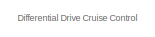
[diagram: root canvas - part 1/3, top center region]
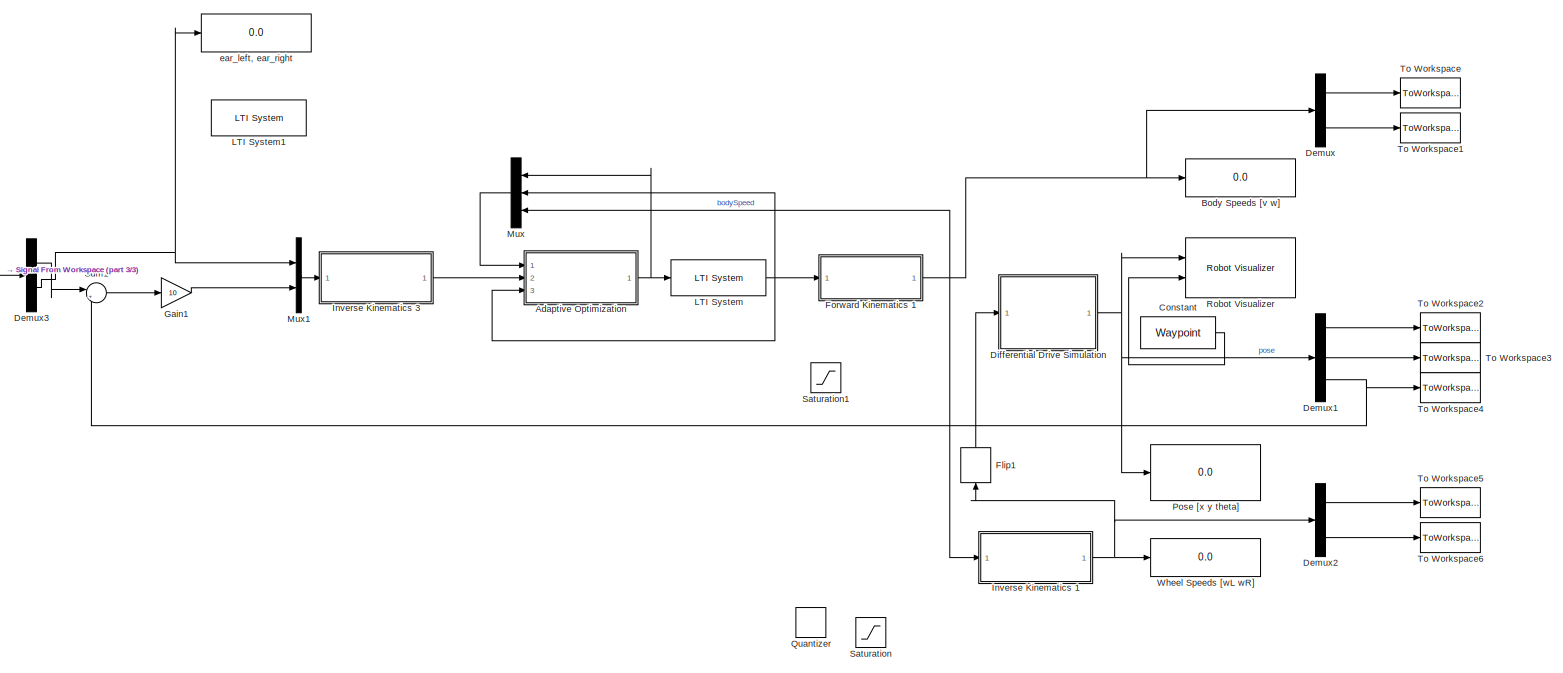
[diagram: root canvas - part 2/3, most of the canvas]
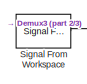
[diagram: root canvas - part 3/3, middle left region]
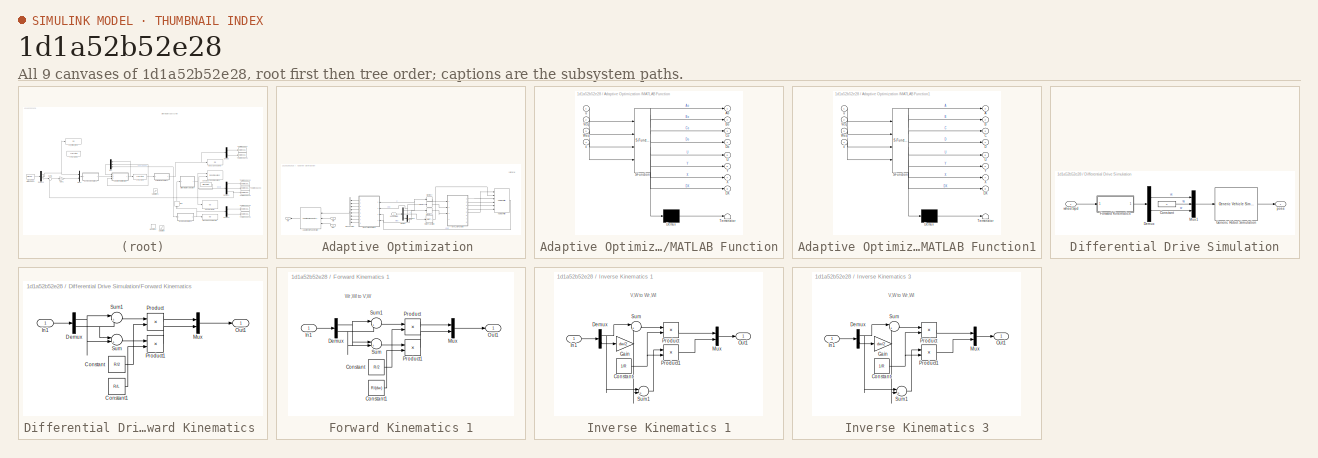
[diagram: thumbnail index - all 9 canvases of the model, root first then tree order]
MODEL slx_1d1a52b52e28
KIND model
CONFIG AbsTol = auto
CONFIG EnableMultiTasking = on
CONFIG FixedStep = 0.01
CONFIG MaxStep = auto
CONFIG MinStep = auto
CONFIG PreLoadFcn = sampleTime = 0.05;\n\n% Vehicle Parameters\nR = 0.1;\nL = 0.5;
CONFIG RelTol = 1e-3
CONFIG SampleTimeConstraint = Unconstrained
CONFIG Solver = VariableStepAuto
CONFIG SolverName = VariableStepAuto
CONFIG StartTime = 0.0
CONFIG StopTime = inf
BLOCK [SubSystem] Adaptive Optimization 
  Ports = [3, 1]
  RequestExecContextInheritance = off
BLOCK [Reference] Adaptive Optimization /Adaptive MPC Controller  REF=mpclib/Adaptive MPC Controller  (lib defined in mdl_ae329e0e0455)
  Ports = [3, 1]
  SCDEnableBlockLinearizationSpecification = on
  SourceBlock = mpclib/Adaptive MPC Controller
  SourceProductBaseCode = MP
  SourceProductName = Model Predictive Control Toolbox
  SourceType = Adaptive MPC
BLOCK [BusCreator] Adaptive Optimization /Bus Creator
  DisplayOption = bar
  InheritFromInputs = on
  Inputs = 8
  Ports = [8, 1]
BLOCK [Demux] Adaptive Optimization /Demux
  DisplayOption = bar
  Outputs = 3
  Ports = [1, 3]
BLOCK [Demux] Adaptive Optimization /Demux1
  DisplayOption = bar
  Outputs = 2
  Ports = [1, 2]
BLOCK [Reference] Adaptive Optimization /Kalman Filter  REF=ctrlSharedLib/Kalman Filter
  Ports = [6, 1]
  SourceBlock = ctrlSharedLib/Kalman Filter
  SourceProductBaseCode = CT
  SourceProductName = Control System Toolbox
  SourceType = ctrlKalmanFilter
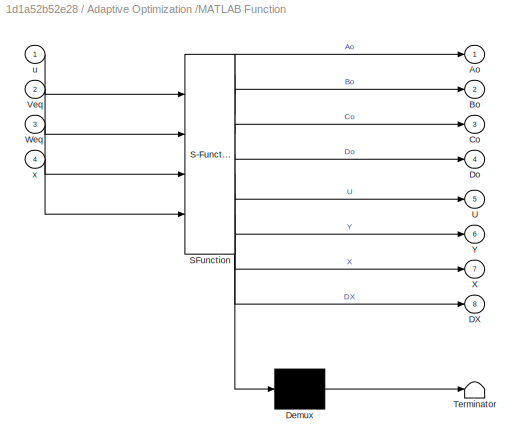
BLOCK [SubSystem] Adaptive Optimization /MATLAB Function
  ErrorFcn = Stateflow.Translate.translate
  PermitHierarchicalResolution = ExplicitOnly
  Ports = [4, 8]
  RequestExecContextInheritance = off
  SFBlockType = MATLAB Function
  SystemSampleTime = sampleTime
  TreatAsAtomicUnit = on
BLOCK [Demux] Adaptive Optimization /MATLAB Function/ Demux 
  Outputs = 1
  Ports = [1, 1]
BLOCK [S-Function] Adaptive Optimization /MATLAB Function/ SFunction 
  EnableBusSupport = on
  FunctionName = sf_sfun
  Parameters = I,Iw,L,R,d,dw,md,sampleTime
  PortCounts = [4 9]
  Ports = [4, 9]
  SFcnIsStateOwnerBlock = off
  SFunctionDeploymentMode = off
  Tag = Stateflow S-Function Cruise_MPC_Adaptive 3
BLOCK [Terminator] Adaptive Optimization /MATLAB Function/ Terminator 
BLOCK [Outport] Adaptive Optimization /MATLAB Function/Ao
  IconDisplay = Port number
BLOCK [Outport] Adaptive Optimization /MATLAB Function/Bo
  IconDisplay = Port number
  Port = 2
BLOCK [Outport] Adaptive Optimization /MATLAB Function/Co
  IconDisplay = Port number
  Port = 3
BLOCK [Outport] Adaptive Optimization /MATLAB Function/DX
  IconDisplay = Port number
  Port = 8
BLOCK [Outport] Adaptive Optimization /MATLAB Function/Do
  IconDisplay = Port number
  Port = 4
BLOCK [Outport] Adaptive Optimization /MATLAB Function/U
  IconDisplay = Port number
  Port = 5
BLOCK [Inport] Adaptive Optimization /MATLAB Function/Veq
  IconDisplay = Port number
  Port = 2
BLOCK [Inport] Adaptive Optimization /MATLAB Function/Weq
  IconDisplay = Port number
  Port = 3
BLOCK [Outport] Adaptive Optimization /MATLAB Function/X
  IconDisplay = Port number
  Port = 7
BLOCK [Outport] Adaptive Optimization /MATLAB Function/Y
  IconDisplay = Port number
  Port = 6
BLOCK [Inport] Adaptive Optimization /MATLAB Function/u
  IconDisplay = Port number
BLOCK [Inport] Adaptive Optimization /MATLAB Function/x
  IconDisplay = Port number
  Port = 4
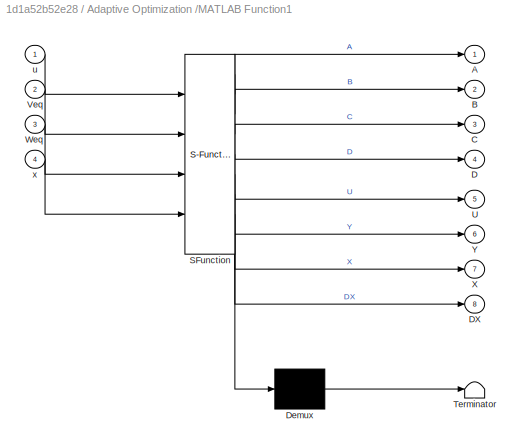
BLOCK [SubSystem] Adaptive Optimization /MATLAB Function1
  ErrorFcn = Stateflow.Translate.translate
  PermitHierarchicalResolution = ExplicitOnly
  Ports = [4, 8]
  RequestExecContextInheritance = off
  SFBlockType = MATLAB Function
  SystemSampleTime = sampleTime
  TreatAsAtomicUnit = on
BLOCK [Demux] Adaptive Optimization /MATLAB Function1/ Demux 
  Outputs = 1
  Ports = [1, 1]
BLOCK [S-Function] Adaptive Optimization /MATLAB Function1/ SFunction 
  EnableBusSupport = on
  FunctionName = sf_sfun
  Parameters = I,Iw,L,R,d,dw,md,sampleTime
  PortCounts = [4 9]
  Ports = [4, 9]
  SFcnIsStateOwnerBlock = off
  SFunctionDeploymentMode = off
  Tag = Stateflow S-Function Cruise_MPC_Adaptive 4
BLOCK [Terminator] Adaptive Optimization /MATLAB Function1/ Terminator 
BLOCK [Outport] Adaptive Optimization /MATLAB Function1/A
  IconDisplay = Port number
BLOCK [Outport] Adaptive Optimization /MATLAB Function1/B
  IconDisplay = Port number
  Port = 2
BLOCK [Outport] Adaptive Optimization /MATLAB Function1/C
  IconDisplay = Port number
  Port = 3
BLOCK [Outport] Adaptive Optimization /MATLAB Function1/D
  IconDisplay = Port number
  Port = 4
BLOCK [Outport] Adaptive Optimization /MATLAB Function1/DX
  IconDisplay = Port number
  Port = 8
BLOCK [Outport] Adaptive Optimization /MATLAB Function1/U
  IconDisplay = Port number
  Port = 5
BLOCK [Inport] Adaptive Optimization /MATLAB Function1/Veq
  IconDisplay = Port number
  Port = 2
BLOCK [Inport] Adaptive Optimization /MATLAB Function1/Weq
  IconDisplay = Port number
  Port = 3
BLOCK [Outport] Adaptive Optimization /MATLAB Function1/X
  IconDisplay = Port number
  Port = 7
BLOCK [Outport] Adaptive Optimization /MATLAB Function1/Y
  IconDisplay = Port number
  Port = 6
BLOCK [Inport] Adaptive Optimization /MATLAB Function1/u
  IconDisplay = Port number
BLOCK [Inport] Adaptive Optimization /MATLAB Function1/x
  IconDisplay = Port number
  Port = 4
BLOCK [Memory] Adaptive Optimization /Memory
BLOCK [Memory] Adaptive Optimization /Memory1
BLOCK [Memory] Adaptive Optimization /Memory2
BLOCK [Inport] Adaptive Optimization /Mo
  IconDisplay = Port number
  Port = 3
BLOCK [Outport] Adaptive Optimization /Mv
  IconDisplay = Port number
BLOCK [RateTransition] Adaptive Optimization /Rate Transition
  OutPortSampleTime = sampleTime
BLOCK [Inport] Adaptive Optimization /Ref
  IconDisplay = Port number
  Port = 2
BLOCK [Inport] Adaptive Optimization /U,Y,Veq,Weq
  IconDisplay = Port number
BLOCK [Display] Body Speeds [v w]
  Decimation = 1
  Ports = [1]
BLOCK [Constant] Constant
  SampleTime = sampleTime
  Value = Waypoint
BLOCK [Demux] Demux
  DisplayOption = bar
  Outputs = 2
  Ports = [1, 2]
BLOCK [Demux] Demux1
  DisplayOption = bar
  Outputs = 3
  Ports = [1, 3]
BLOCK [Demux] Demux2
  DisplayOption = bar
  Outputs = 2
  Ports = [1, 2]
BLOCK [Demux] Demux3
  DisplayOption = bar
  Outputs = 2
  Ports = [1, 2]
BLOCK [SubSystem] Differential Drive Simulation
  AncestorBlock = mobileRoboticsLib/Kinematic Models/Differential Drive/Differential Drive Simulation
  OverrideUsingVariant = mode==2
  Ports = [1, 1]
  RequestExecContextInheritance = off
BLOCK [Constant] Differential Drive Simulation/Constant
  Value = 0
BLOCK [Demux] Differential Drive Simulation/Demux
  DisplayOption = bar
  Outputs = 2
  Ports = [1, 2]
BLOCK [SubSystem] Differential Drive Simulation/Forward Kinematics 
  Ports = [1, 1]
  RequestExecContextInheritance = off
BLOCK [Constant] Differential Drive Simulation/Forward Kinematics /Constant
  Value = R/2
BLOCK [Constant] Differential Drive Simulation/Forward Kinematics /Constant1
  Value = R/L
BLOCK [Demux] Differential Drive Simulation/Forward Kinematics /Demux
  DisplayOption = bar
  Outputs = 2
  Ports = [1, 2]
BLOCK [Inport] Differential Drive Simulation/Forward Kinematics /In1
  IconDisplay = Port number
BLOCK [Mux] Differential Drive Simulation/Forward Kinematics /Mux
  DisplayOption = bar
  Inputs = 2
  Ports = [2, 1]
BLOCK [Outport] Differential Drive Simulation/Forward Kinematics /Out1
  IconDisplay = Port number
BLOCK [Product] Differential Drive Simulation/Forward Kinematics /Product
  InputSameDT = off
  OutDataTypeStr = Inherit: Inherit via internal rule
  Ports = [2, 1]
  RndMeth = Floor
  SaturateOnIntegerOverflow = off
BLOCK [Product] Differential Drive Simulation/Forward Kinematics /Product1
  InputSameDT = off
  OutDataTypeStr = Inherit: Inherit via internal rule
  Ports = [2, 1]
  RndMeth = Floor
  SaturateOnIntegerOverflow = off
BLOCK [Sum] Differential Drive Simulation/Forward Kinematics /Sum
  IconShape = round
  InputSameDT = off
  Inputs = |+-
  OutDataTypeStr = Inherit: Inherit via internal rule
  Ports = [2, 1]
  SaturateOnIntegerOverflow = off
BLOCK [Sum] Differential Drive Simulation/Forward Kinematics /Sum1
  IconShape = round
  InputSameDT = off
  Inputs = |++
  OutDataTypeStr = Inherit: Inherit via internal rule
  Ports = [2, 1]
  SaturateOnIntegerOverflow = off
BLOCK [Reference] Differential Drive Simulation/Generic Robot Simulation  REF=mobileRoboticsLib/Utilities/Generic Vehicle Simulation
  Ports = [1, 1]
  SourceBlock = mobileRoboticsLib/Utilities/Generic Vehicle Simulation
  SourceProductName = Mobile Robotics Simulation Toolbox
  SourceType = Generic Vehicle Simulation
BLOCK [Mux] Differential Drive Simulation/Mux1
  DisplayOption = bar
  Inputs = 3
  Ports = [3, 1]
BLOCK [Outport] Differential Drive Simulation/pose
  IconDisplay = Port number
BLOCK [Inport] Differential Drive Simulation/wheelSpd
  IconDisplay = Port number
BLOCK [DSPFlip] Flip1
BLOCK [SubSystem] Forward Kinematics 1
  Ports = [1, 1]
  RequestExecContextInheritance = off
BLOCK [Constant] Forward Kinematics 1/Constant
  Value = R/2
BLOCK [Constant] Forward Kinematics 1/Constant1
  Value = R/(dw)
BLOCK [Demux] Forward Kinematics 1/Demux
  DisplayOption = bar
  Outputs = 2
  Ports = [1, 2]
BLOCK [Inport] Forward Kinematics 1/In1
  IconDisplay = Port number
BLOCK [Mux] Forward Kinematics 1/Mux
  DisplayOption = bar
  Inputs = 2
  Ports = [2, 1]
BLOCK [Outport] Forward Kinematics 1/Out1
  IconDisplay = Port number
BLOCK [Product] Forward Kinematics 1/Product
  InputSameDT = off
  OutDataTypeStr = Inherit: Inherit via internal rule
  Ports = [2, 1]
  RndMeth = Floor
  SaturateOnIntegerOverflow = off
BLOCK [Product] Forward Kinematics 1/Product1
  InputSameDT = off
  OutDataTypeStr = Inherit: Inherit via internal rule
  Ports = [2, 1]
  RndMeth = Floor
  SaturateOnIntegerOverflow = off
BLOCK [Sum] Forward Kinematics 1/Sum
  IconShape = round
  InputSameDT = off
  Inputs = |+-
  OutDataTypeStr = Inherit: Inherit via internal rule
  Ports = [2, 1]
  SaturateOnIntegerOverflow = off
BLOCK [Sum] Forward Kinematics 1/Sum1
  IconShape = round
  InputSameDT = off
  Inputs = |++
  OutDataTypeStr = Inherit: Inherit via internal rule
  Ports = [2, 1]
  SaturateOnIntegerOverflow = off
BLOCK [Gain] Gain1
  Gain = 10
  OutDataTypeStr = Inherit: Inherit via internal rule
  ParamDataTypeStr = Inherit: Inherit via internal rule
  SaturateOnIntegerOverflow = off
BLOCK [SubSystem] Inverse Kinematics 1
  Ports = [1, 1]
  RequestExecContextInheritance = off
BLOCK [Constant] Inverse Kinematics 1/Constant
  Value = 1/R
BLOCK [Demux] Inverse Kinematics 1/Demux
  DisplayOption = bar
  Outputs = 2
  Ports = [1, 2]
BLOCK [Gain] Inverse Kinematics 1/Gain
  Gain = dw/2
  OutDataTypeStr = Inherit: Inherit via internal rule
  ParamDataTypeStr = Inherit: Inherit via internal rule
  SaturateOnIntegerOverflow = off
BLOCK [Inport] Inverse Kinematics 1/In1
  IconDisplay = Port number
BLOCK [Mux] Inverse Kinematics 1/Mux
  DisplayOption = bar
  Inputs = 2
  Ports = [2, 1]
BLOCK [Outport] Inverse Kinematics 1/Out1
  IconDisplay = Port number
BLOCK [Product] Inverse Kinematics 1/Product
  InputSameDT = off
  OutDataTypeStr = Inherit: Inherit via internal rule
  Ports = [2, 1]
  RndMeth = Floor
  SaturateOnIntegerOverflow = off
BLOCK [Product] Inverse Kinematics 1/Product1
  InputSameDT = off
  OutDataTypeStr = Inherit: Inherit via internal rule
  Ports = [2, 1]
  RndMeth = Floor
  SaturateOnIntegerOverflow = off
BLOCK [Sum] Inverse Kinematics 1/Sum
  IconShape = round
  InputSameDT = off
  Inputs = |++
  OutDataTypeStr = Inherit: Inherit via internal rule
  Ports = [2, 1]
  SaturateOnIntegerOverflow = off
BLOCK [Sum] Inverse Kinematics 1/Sum1
  IconShape = round
  InputSameDT = off
  Inputs = |+-
  OutDataTypeStr = Inherit: Inherit via internal rule
  Ports = [2, 1]
  SaturateOnIntegerOverflow = off
BLOCK [SubSystem] Inverse Kinematics 3
  Ports = [1, 1]
  RequestExecContextInheritance = off
BLOCK [Constant] Inverse Kinematics 3/Constant
  Value = 1/R
BLOCK [Demux] Inverse Kinematics 3/Demux
  DisplayOption = bar
  Outputs = 2
  Ports = [1, 2]
BLOCK [Gain] Inverse Kinematics 3/Gain
  Gain = dw/2
  OutDataTypeStr = Inherit: Inherit via internal rule
  ParamDataTypeStr = Inherit: Inherit via internal rule
  SaturateOnIntegerOverflow = off
BLOCK [Inport] Inverse Kinematics 3/In1
  IconDisplay = Port number
BLOCK [Mux] Inverse Kinematics 3/Mux
  DisplayOption = bar
  Inputs = 2
  Ports = [2, 1]
BLOCK [Outport] Inverse Kinematics 3/Out1
  IconDisplay = Port number
BLOCK [Product] Inverse Kinematics 3/Product
  InputSameDT = off
  OutDataTypeStr = Inherit: Inherit via internal rule
  Ports = [2, 1]
  RndMeth = Floor
  SaturateOnIntegerOverflow = off
BLOCK [Product] Inverse Kinematics 3/Product1
  InputSameDT = off
  OutDataTypeStr = Inherit: Inherit via internal rule
  Ports = [2, 1]
  RndMeth = Floor
  SaturateOnIntegerOverflow = off
BLOCK [Sum] Inverse Kinematics 3/Sum
  IconShape = round
  InputSameDT = off
  Inputs = |++
  OutDataTypeStr = Inherit: Inherit via internal rule
  Ports = [2, 1]
  SaturateOnIntegerOverflow = off
BLOCK [Sum] Inverse Kinematics 3/Sum1
  IconShape = round
  InputSameDT = off
  Inputs = |+-
  OutDataTypeStr = Inherit: Inherit via internal rule
  Ports = [2, 1]
  SaturateOnIntegerOverflow = off
BLOCK [Reference] LTI System  REF=cstblocks/LTI System
  Ports = [1, 1]
  SourceBlock = cstblocks/LTI System
  SourceProductBaseCode = CT
  SourceProductName = Control System Toolbox
  SourceType = LTI Block
BLOCK [Reference] LTI System1  REF=cstblocks/LTI System
  Ports = [1, 1]
  SourceBlock = cstblocks/LTI System
  SourceProductBaseCode = CT
  SourceProductName = Control System Toolbox
  SourceType = LTI Block
BLOCK [Mux] Mux
  DisplayOption = bar
  Inputs = 3
  Ports = [3, 1]
BLOCK [Mux] Mux1
  DisplayOption = bar
  Inputs = 2
  Ports = [2, 1]
BLOCK [Display] Pose [x y theta]
  Decimation = 1
  Ports = [1]
BLOCK [Quantizer] Quantizer
BLOCK [Reference] Robot Visualizer  REF=mobileRoboticsLib/Environments/Robot Visualizer
  Ports = [2]
  Priority = 99
  SourceBlock = mobileRoboticsLib/Environments/Robot Visualizer
  SourceProductName = Mobile Robotics Simulation Library
  SourceType = Visualizer2D
BLOCK [Saturate] Saturation
  InputPortMap = u0
  Ports = [1, 1]
BLOCK [Saturate] Saturation1
  InputPortMap = u0
  LowerLimit = 0
  Ports = [1, 1]
  UpperLimit = 12
BLOCK [Reference] Signal From Workspace  REF=dspsrcs4/Signal From
Workspace
  Ports = [0, 1]
  SourceBlock = dspsrcs4/Signal From\nWorkspace
  SourceProductBaseCode = DS
  SourceProductName = DSP System Toolbox
  SourceType = Signal From Workspace
BLOCK [Sum] Sum1
  IconShape = round
  InputSameDT = off
  Inputs = |+-
  OutDataTypeStr = Inherit: Inherit via internal rule
  Ports = [2, 1]
  SaturateOnIntegerOverflow = off
BLOCK [ToWorkspace] To Workspace
  FixptAsFi = on
  MaxDataPoints = inf
  Ports = [1]
  SampleTime = -1
  Save2DSignal = 3-D array (concatenate along third dimension)
  VariableName = v
BLOCK [ToWorkspace] To Workspace1
  FixptAsFi = on
  MaxDataPoints = inf
  Ports = [1]
  SampleTime = -1
  Save2DSignal = 3-D array (concatenate along third dimension)
  VariableName = w
BLOCK [ToWorkspace] To Workspace2
  FixptAsFi = on
  MaxDataPoints = inf
  Ports = [1]
  SampleTime = sampleTime
  Save2DSignal = 3-D array (concatenate along third dimension)
  VariableName = X
BLOCK [ToWorkspace] To Workspace3
  FixptAsFi = on
  MaxDataPoints = inf
  Ports = [1]
  SampleTime = -1
  Save2DSignal = 3-D array (concatenate along third dimension)
  VariableName = Y
BLOCK [ToWorkspace] To Workspace4
  FixptAsFi = on
  MaxDataPoints = inf
  Ports = [1]
  SampleTime = -1
  Save2DSignal = 3-D array (concatenate along third dimension)
  VariableName = theta
BLOCK [ToWorkspace] To Workspace5
  FixptAsFi = on
  MaxDataPoints = inf
  Ports = [1]
  SampleTime = -1
  Save2DSignal = 3-D array (concatenate along third dimension)
  VariableName = wL
BLOCK [ToWorkspace] To Workspace6
  FixptAsFi = on
  MaxDataPoints = inf
  Ports = [1]
  SampleTime = -1
  Save2DSignal = 3-D array (concatenate along third dimension)
  VariableName = wR
BLOCK [Display] Wheel Speeds [wL wR]
  Decimation = 1
  Ports = [1]
BLOCK [Display] ear_left, ear_right 
  Decimation = 1
  Ports = [1]
ANNOTATION (root): Differential Drive Cruise Control
ANNOTATION Adaptive Optimization : V,W to Wr,Wl
ANNOTATION Forward Kinematics 1: Wr,Wl to V,W
ANNOTATION Inverse Kinematics 1: V,W to Wr,Wl
ANNOTATION Inverse Kinematics 3: V,W to Wr,Wl
LINE Adaptive Optimization /Adaptive MPC Controller:1 -> Adaptive Optimization /Mv:1
LINE Adaptive Optimization /Bus Creator:1 -> Adaptive Optimization /Adaptive MPC Controller:1
NET Adaptive Optimization /Demux1:1 -> Adaptive Optimization /MATLAB Function1:2, Adaptive Optimization /Memory2:1
NET Adaptive Optimization /Demux1:2 -> Adaptive Optimization /MATLAB Function1:3, Adaptive Optimization /Memory1:1
NET Adaptive Optimization /Demux:1 -> Adaptive Optimization /MATLAB Function1:1, Adaptive Optimization /Memory:1
LINE Adaptive Optimization /Demux:2 -> Adaptive Optimization /Rate Transition:1
LINE Adaptive Optimization /Demux:3 -> Adaptive Optimization /Demux1:1
LINE Adaptive Optimization /Kalman Filter:1 -> Adaptive Optimization /MATLAB Function1:4
LINE Adaptive Optimization /MATLAB Function1:1 -> Adaptive Optimization /Bus Creator:1
LINE Adaptive Optimization /MATLAB Function1:2 -> Adaptive Optimization /Bus Creator:2
LINE Adaptive Optimization /MATLAB Function1:3 -> Adaptive Optimization /Bus Creator:3
LINE Adaptive Optimization /MATLAB Function1:4 -> Adaptive Optimization /Bus Creator:4
LINE Adaptive Optimization /MATLAB Function1:5 -> Adaptive Optimization /Bus Creator:5
LINE Adaptive Optimization /MATLAB Function1:6 -> Adaptive Optimization /Bus Creator:6
LINE Adaptive Optimization /MATLAB Function1:7 -> Adaptive Optimization /Bus Creator:7
LINE Adaptive Optimization /MATLAB Function1:8 -> Adaptive Optimization /Bus Creator:8
LINE Adaptive Optimization /MATLAB Function:1 -> Adaptive Optimization /Kalman Filter:3
LINE Adaptive Optimization /MATLAB Function:2 -> Adaptive Optimization /Kalman Filter:4
LINE Adaptive Optimization /MATLAB Function:3 -> Adaptive Optimization /Kalman Filter:5
LINE Adaptive Optimization /MATLAB Function:4 -> Adaptive Optimization /Kalman Filter:6
LINE Adaptive Optimization /MATLAB Function:5 -> Adaptive Optimization /Kalman Filter:1
LINE Adaptive Optimization /Memory1:1 -> Adaptive Optimization /MATLAB Function:3
LINE Adaptive Optimization /Memory2:1 -> Adaptive Optimization /MATLAB Function:2
LINE Adaptive Optimization /Memory:1 -> Adaptive Optimization /MATLAB Function:1
LINE Adaptive Optimization /Mo:1 -> Adaptive Optimization /Adaptive MPC Controller:2
LINE Adaptive Optimization /Rate Transition:1 -> Adaptive Optimization /Kalman Filter:2
LINE Adaptive Optimization /Ref:1 -> Adaptive Optimization /Adaptive MPC Controller:3
LINE Adaptive Optimization /U,Y,Veq,Weq:1 -> Adaptive Optimization /Demux:1
NET Adaptive Optimization :1 -> LTI System:1, Mux:1
LINE Constant:1 -> Robot Visualizer:2
LINE Demux1:1 -> To Workspace2:1
LINE Demux1:2 -> To Workspace3:1
NET Demux1:3 -> Sum1:2, To Workspace4:1
LINE Demux2:1 -> To Workspace5:1
LINE Demux2:2 -> To Workspace6:1
LINE Demux3:1 -> Sum1:1
NET Demux3:2 -> Mux1:1, ear_left, ear_right :1
LINE Demux:1 -> To Workspace:1
LINE Demux:2 -> To Workspace1:1
NET Differential Drive Simulation:1 -> Demux1:1, Pose [x y theta]:1, Robot Visualizer:1
LINE Flip1:1 -> Differential Drive Simulation:1
LINE Forward Kinematics 1/Constant1:1 -> Forward Kinematics 1/Product1:2
LINE Forward Kinematics 1/Constant:1 -> Forward Kinematics 1/Product:2
NET Forward Kinematics 1/Demux:1 -> Forward Kinematics 1/Sum1:1, Forward Kinematics 1/Sum:1
NET Forward Kinematics 1/Demux:2 -> Forward Kinematics 1/Sum1:2, Forward Kinematics 1/Sum:2
LINE Forward Kinematics 1/In1:1 -> Forward Kinematics 1/Demux:1
LINE Forward Kinematics 1/Mux:1 -> Forward Kinematics 1/Out1:1
LINE Forward Kinematics 1/Product1:1 -> Forward Kinematics 1/Mux:2
LINE Forward Kinematics 1/Product:1 -> Forward Kinematics 1/Mux:1
LINE Forward Kinematics 1/Sum1:1 -> Forward Kinematics 1/Product:1
LINE Forward Kinematics 1/Sum:1 -> Forward Kinematics 1/Product1:1
NET Forward Kinematics 1:1 -> Body Speeds [v w]:1, Demux:1, Inverse Kinematics 1:1, Mux:3
LINE Gain1:1 -> Mux1:2
NET Inverse Kinematics 1/Constant:1 -> Inverse Kinematics 1/Product1:2, Inverse Kinematics 1/Product:2
NET Inverse Kinematics 1/Demux:1 -> Inverse Kinematics 1/Sum1:1, Inverse Kinematics 1/Sum:1
LINE Inverse Kinematics 1/Demux:2 -> Inverse Kinematics 1/Gain:1
NET Inverse Kinematics 1/Gain:1 -> Inverse Kinematics 1/Sum1:2, Inverse Kinematics 1/Sum:2
LINE Inverse Kinematics 1/In1:1 -> Inverse Kinematics 1/Demux:1
LINE Inverse Kinematics 1/Mux:1 -> Inverse Kinematics 1/Out1:1
LINE Inverse Kinematics 1/Product1:1 -> Inverse Kinematics 1/Mux:2
LINE Inverse Kinematics 1/Product:1 -> Inverse Kinematics 1/Mux:1
LINE Inverse Kinematics 1/Sum1:1 -> Inverse Kinematics 1/Product1:1
LINE Inverse Kinematics 1/Sum:1 -> Inverse Kinematics 1/Product:1
NET Inverse Kinematics 1:1 -> Demux2:1, Flip1:1, Wheel Speeds [wL wR]:1
NET Inverse Kinematics 3/Constant:1 -> Inverse Kinematics 3/Product1:2, Inverse Kinematics 3/Product:2
NET Inverse Kinematics 3/Demux:1 -> Inverse Kinematics 3/Sum1:1, Inverse Kinematics 3/Sum:1
LINE Inverse Kinematics 3/Demux:2 -> Inverse Kinematics 3/Gain:1
NET Inverse Kinematics 3/Gain:1 -> Inverse Kinematics 3/Sum1:2, Inverse Kinematics 3/Sum:2
LINE Inverse Kinematics 3/In1:1 -> Inverse Kinematics 3/Demux:1
LINE Inverse Kinematics 3/Mux:1 -> Inverse Kinematics 3/Out1:1
LINE Inverse Kinematics 3/Product1:1 -> Inverse Kinematics 3/Mux:2
LINE Inverse Kinematics 3/Product:1 -> Inverse Kinematics 3/Mux:1
LINE Inverse Kinematics 3/Sum1:1 -> Inverse Kinematics 3/Product1:1
LINE Inverse Kinematics 3/Sum:1 -> Inverse Kinematics 3/Product:1
LINE Inverse Kinematics 3:1 -> Adaptive Optimization :2
NET LTI System:1 -> Adaptive Optimization :3, Forward Kinematics 1:1, Mux:2
LINE Mux1:1 -> Inverse Kinematics 3:1
LINE Mux:1 -> Adaptive Optimization :1
LINE Signal From Workspace:1 -> Demux3:1
LINE Sum1:1 -> Gain1:1
note: NET lines group one-source signal fan-out (src -> all destinations, sorted); 1:1 wires keep LINE
CHART Adaptive Optimization
/MATLAB Function states=1 transitions=1
  STATE_LABEL 'eML_blk_kernel()'
  STATE_LABEL 'SCRIPT:\nfunction [Ao,Bo,Co,Do,U,Y,X,DX] = fcn(u,Veq,Weq,x,sampleTime,d, dw, Iw, I, md, R, L)\n% Sample time\nTs = sampleTime;\n\n% Model Parameters\nKt = 0.0046; Kg = 50; Kb = Kt; Beta = 2.29e-06; La =1.729e-03; Ra = 5.51;\nm = 3.4; mc = 2.76 + md; I = I ; Iw = Iw; L = L; d = d; dw = dw; \nA = m + 2*Iw/(R*R); B = I + dw*dw*Iw/(2*R*R);\n\n% Continuous-time model for Plant e_r, e_l to Wr,Wl\nAc = [-2*Beta*Kg*...<+722ch>'
CHART Adaptive Optimization
/MATLAB Function1 states=1 transitions=1
  STATE_LABEL 'eML_blk_kernel()'
  STATE_LABEL 'SCRIPT:\nfunction [A,B,C,D,U,Y,X,DX] = fcn(u,Veq,Weq,x,sampleTime,d, dw, Iw, I, md, R, L)\n% Sample time\nTs = sampleTime;\n\n% Model Parameters\nKt = 0.0046; Kg = 50; Kb = Kt; Beta = 2.29e-06; La =1.729e-03; Ra = 5.51;\nm = 3.4; mc = 2.76 + md; I = I ; Iw = Iw; L = L; d = d; dw = dw; \nAo = m + 2*Iw/(R*R); Bo = I + dw*dw*Iw/(2*R*R);\n\n% Continuous-time model for Plant e_r, e_l to Wr,Wl\nAc = [-2*Beta*Kg*Kg...<+721ch>'
